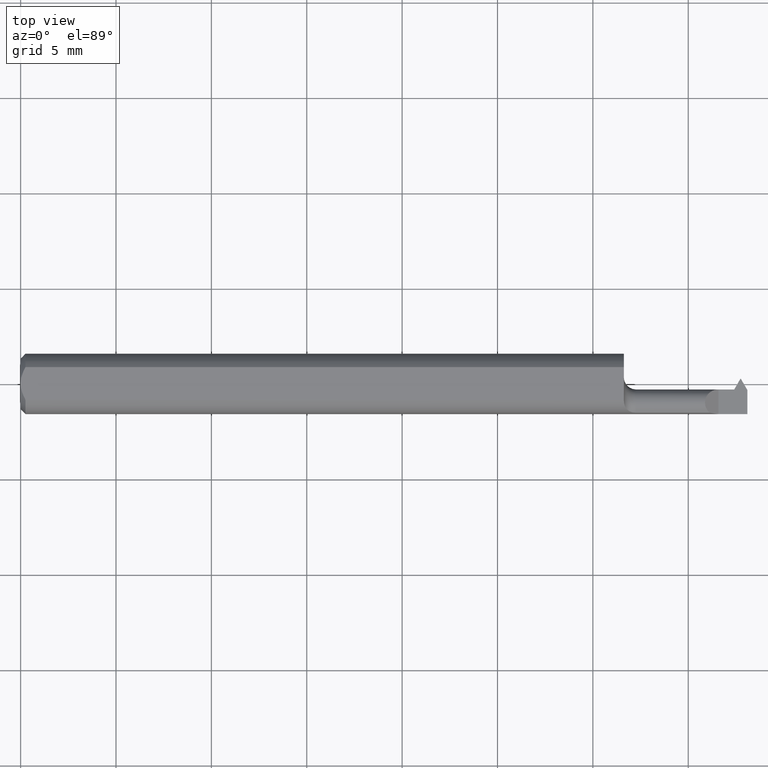
[diagram: clean part render]
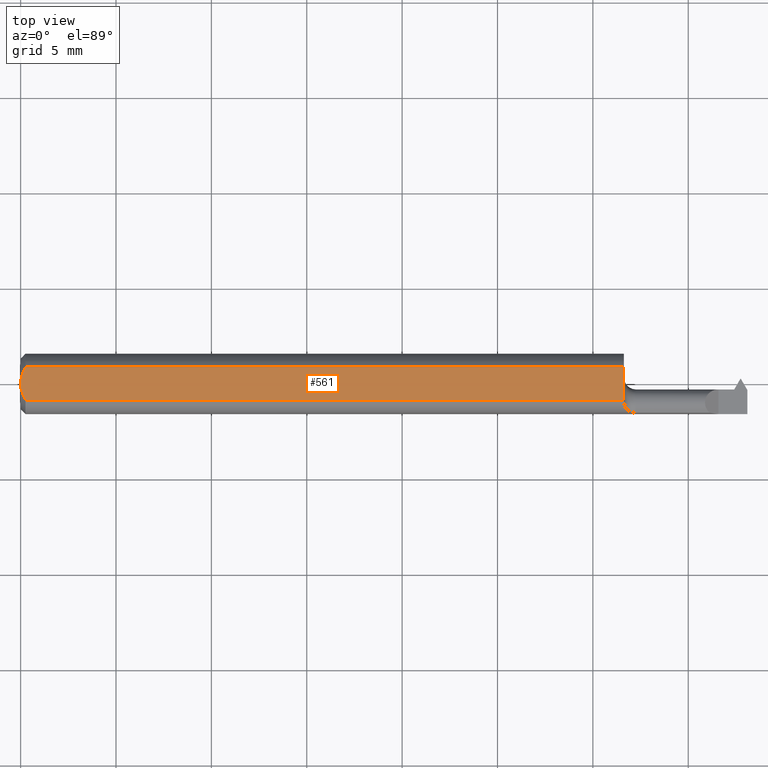
[diagram: same view with one face highlighted and labeled with its STEP entity id]
A machine part, top view. The second image highlights one B-rep face of the part: STEP entity #561.
In plain terms, the highlighted planar face has unit normal (0, 0, 1).
Its self-contained STEP definition (entity closure, byte-faithful):
#21 = LINE ( 'NONE', #467, #35 ) ;
#35 = VECTOR ( 'NONE', #712, 39.37007874015748143 ) ;
#38 = CARTESIAN_POINT ( 'NONE',  ( 0.004671770759546948343, 0.02323517832780106970, 0.05234999999999998682 ) ) ;
#111 = CARTESIAN_POINT ( 'NONE',  ( 1.244999999999999885, -0.03386738844375228319, 0.05234999999999997294 ) ) ;
#148 = EDGE_CURVE ( 'NONE', #149, #265, #644, .T. ) ;
#149 = VERTEX_POINT ( 'NONE', #353 ) ;
#151 = AXIS2_PLACEMENT_3D ( 'NONE', #788, #478, #677 ) ;
#160 = CARTESIAN_POINT ( 'NONE',  ( 0.01000000000000001582, 0.03386738844375224849, 0.05234999999999997294 ) ) ;
#199 = EDGE_CURVE ( 'NONE', #683, #590, #21, .T. ) ;
#218 = VECTOR ( 'NONE', #226, 39.37007874015748143 ) ;
#219 = CARTESIAN_POINT ( 'NONE',  ( 0.000000000000000000, -0.03386738844375224849, 0.05234999999999997294 ) ) ;
#221 = EDGE_LOOP ( 'NONE', ( #795, #704, #676, #233, #637 ) ) ;
#222 = CARTESIAN_POINT ( 'NONE',  ( 0.007163450771350545095, -0.02864528976618617440, 0.05234999999999997294 ) ) ;
#226 = DIRECTION ( 'NONE',  ( -1.134245723387741042E-16, 1.000000000000000000, 0.000000000000000000 ) ) ;
#233 = ORIENTED_EDGE ( 'NONE', *, *, #767, .F. ) ;
#255 = CARTESIAN_POINT ( 'NONE',  ( 1.244999999999999885, 0.03386738844375224849, 0.05234999999999997294 ) ) ;
#265 = VERTEX_POINT ( 'NONE', #111 ) ;
#290 = DIRECTION ( 'NONE',  ( 1.000000000000000000, 0.000000000000000000, 0.000000000000000000 ) ) ;
#295 = CARTESIAN_POINT ( 'NONE',  ( 0.000000000000000000, 0.000000000000000000, 0.05234999999999997294 ) ) ;
#313 = B_SPLINE_CURVE_WITH_KNOTS ( 'NONE', 3,
 ( #703, #575, #523, #38, #652, #160 ),
 .UNSPECIFIED., .F., .F.,
 ( 4, 2, 4 ),
 ( 0.003093386807937201569, 0.003544501666246021275, 0.003995616524554840981 ),
 .UNSPECIFIED. ) ;
#336 = CARTESIAN_POINT ( 'NONE',  ( 0.000000000000000000, 0.000000000000000000, 0.05234999999999997294 ) ) ;
#353 = CARTESIAN_POINT ( 'NONE',  ( 0.01000000000000001582, -0.03386738844375224849, 0.05234999999999997294 ) ) ;
#396 = CARTESIAN_POINT ( 'NONE',  ( 1.244999999999999885, 0.06234999999999996101, 0.05234999999999997294 ) ) ;
#405 = EDGE_CURVE ( 'NONE', #265, #683, #521, .T. ) ;
#410 = CARTESIAN_POINT ( 'NONE',  ( -8.345942350761171353E-16, -0.005965286321680269427, 0.05234999999999997294 ) ) ;
#437 = PLANE ( 'NONE',  #151 ) ;
#457 = CARTESIAN_POINT ( 'NONE',  ( 0.01000000000000001582, -0.03386738844375224849, 0.05234999999999997294 ) ) ;
#467 = CARTESIAN_POINT ( 'NONE',  ( 0.000000000000000000, 0.03386738844375224849, 0.05234999999999997294 ) ) ;
#478 = DIRECTION ( 'NONE',  ( 0.000000000000000000, 0.000000000000000000, 1.000000000000000000 ) ) ;
#489 = VECTOR ( 'NONE', #290, 39.37007874015748143 ) ;
#493 = EDGE_CURVE ( 'NONE', #149, #528, #558, .T. ) ;
#521 = LINE ( 'NONE', #396, #218 ) ;
#523 = CARTESIAN_POINT ( 'NONE',  ( 0.001063697276021587047, 0.01189177144351696164, 0.05234999999999997988 ) ) ;
#528 = VERTEX_POINT ( 'NONE', #295 ) ;
#533 = FACE_OUTER_BOUND ( 'NONE', #221, .T. ) ;
#558 = B_SPLINE_CURVE_WITH_KNOTS ( 'NONE', 3,
 ( #457, #222, #715, #633, #410, #336 ),
 .UNSPECIFIED., .F., .F.,
 ( 4, 2, 4 ),
 ( 0.002189598257423869612, 0.002641492532680535590, 0.003093386807937201569 ),
 .UNSPECIFIED. ) ;
#561 = ADVANCED_FACE ( 'NONE', ( #533 ), #437, .T. ) ;
#575 = CARTESIAN_POINT ( 'NONE',  ( -8.573957617566337510E-16, 0.005954997531773997300, 0.05234999999999997294 ) ) ;
#590 = VERTEX_POINT ( 'NONE', #796 ) ;
#633 = CARTESIAN_POINT ( 'NONE',  ( 0.001055043921633170472, -0.01186408073210962373, 0.05234999999999998682 ) ) ;
#637 = ORIENTED_EDGE ( 'NONE', *, *, #493, .F. ) ;
#644 = LINE ( 'NONE', #219, #489 ) ;
#652 = CARTESIAN_POINT ( 'NONE',  ( 0.007185421074056353927, 0.02868573718286563864, 0.05234999999999997294 ) ) ;
#676 = ORIENTED_EDGE ( 'NONE', *, *, #199, .T. ) ;
#677 = DIRECTION ( 'NONE',  ( 1.000000000000000000, 0.000000000000000000, -0.000000000000000000 ) ) ;
#683 = VERTEX_POINT ( 'NONE', #255 ) ;
#703 = CARTESIAN_POINT ( 'NONE',  ( 0.000000000000000000, 0.000000000000000000, 0.05234999999999997294 ) ) ;
#704 = ORIENTED_EDGE ( 'NONE', *, *, #405, .T. ) ;
#712 = DIRECTION ( 'NONE',  ( -1.000000000000000000, -0.000000000000000000, -0.000000000000000000 ) ) ;
#715 = CARTESIAN_POINT ( 'NONE',  ( 0.004679365186781183836, -0.02325953974079657954, 0.05234999999999997988 ) ) ;
#767 = EDGE_CURVE ( 'NONE', #528, #590, #313, .T. ) ;
#788 = CARTESIAN_POINT ( 'NONE',  ( 1.630958352158234037, 0.06235000000000000264, 0.05234999999999997294 ) ) ;
#795 = ORIENTED_EDGE ( 'NONE', *, *, #148, .T. ) ;
#796 = CARTESIAN_POINT ( 'NONE',  ( 0.01000000000000001582, 0.03386738844375224849, 0.05234999999999997294 ) ) ;